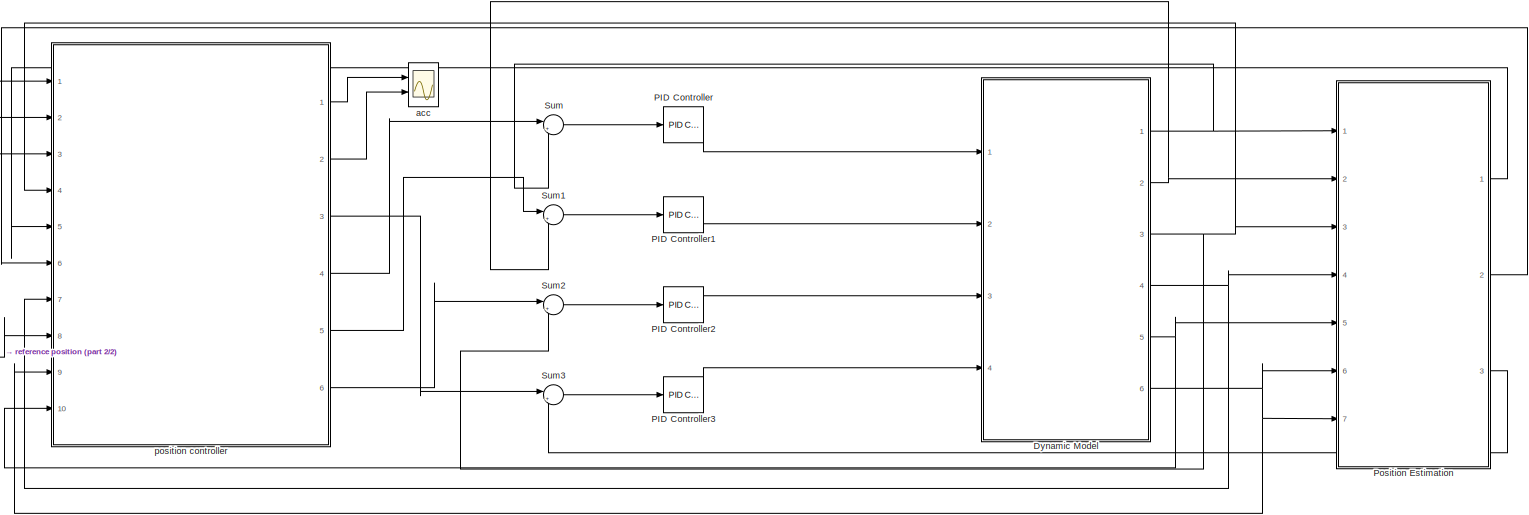
[diagram: root canvas - part 1/2, most of the canvas]
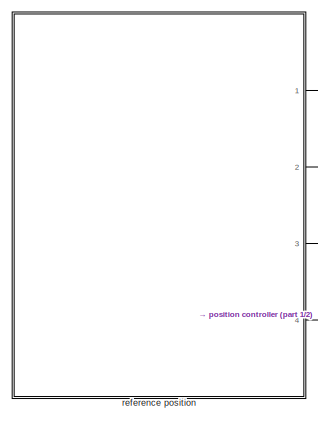
[diagram: root canvas - part 2/2, left side, full height]
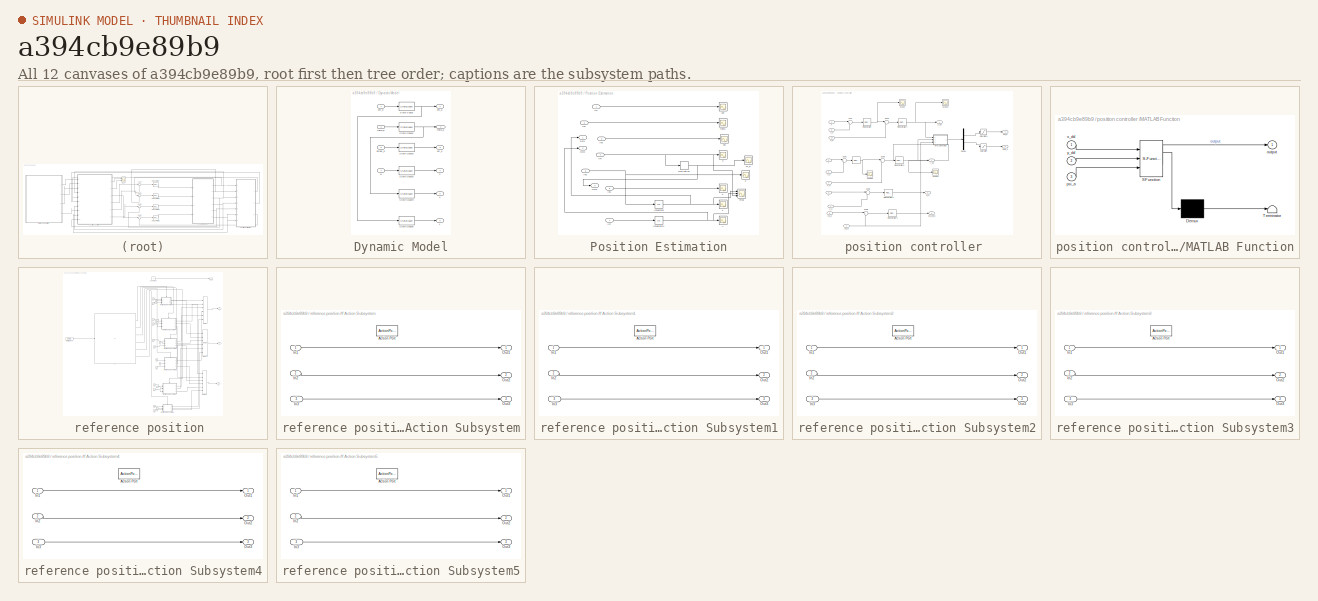
[diagram: thumbnail index - all 12 canvases of the model, root first then tree order]
MODEL slx_a394cb9e89b9
KIND model
CONFIG AbsTol = auto
CONFIG EnableMultiTasking = off
CONFIG FixedStep = auto
CONFIG MaxStep = auto
CONFIG MinStep = auto
CONFIG RelTol = 1e-3
CONFIG SampleTimeConstraint = Unconstrained
CONFIG SolverName = VariableStepAuto
CONFIG StartTime = 0.0
CONFIG StopTime = 1500
BLOCK [SubSystem] Dynamic Model
  Ports = [4, 6]
  RequestExecContextInheritance = off
BLOCK [StateSpace] Dynamic Model/State-Space
  A = A_roll
  B = B_roll
  C = C_roll
  D = D_roll
  InitialCondition = 0
  Ports = [1, 1]
BLOCK [StateSpace] Dynamic Model/State-Space1
  A = A_pitch
  B = B_pitch
  C = C_pitch
  D = D_pitch
  InitialCondition = 0
  Ports = [1, 1]
BLOCK [StateSpace] Dynamic Model/State-Space2
  A = A_yaw
  B = B_yaw
  C = C_yaw
  D = D_yaw
  InitialCondition = 0
  Ports = [1, 1]
BLOCK [StateSpace] Dynamic Model/State-Space3
  A = A_h
  B = B_h
  C = C_h
  D = D_h
  InitialCondition = 0
  Ports = [1, 1]
BLOCK [StateSpace] Dynamic Model/State-Space4
  A = A_p2u
  B = B_p2u
  C = C_p2u
  D = D_p2u
  InitialCondition = 0
  Ports = [1, 1]
BLOCK [StateSpace] Dynamic Model/State-Space5
  A = A_r2v
  B = B_r2v
  C = C_r2v
  D = D_r2v
  InitialCondition = 0
  Ports = [1, 1]
BLOCK [Outport] Dynamic Model/h
  Port = 4
  VectorParamsAs1DForOutWhenUnconnected = off
BLOCK [Outport] Dynamic Model/phi_a
  VectorParamsAs1DForOutWhenUnconnected = off
BLOCK [Inport] Dynamic Model/phi_d
BLOCK [Outport] Dynamic Model/psi_a
  Port = 3
  VectorParamsAs1DForOutWhenUnconnected = off
BLOCK [Inport] Dynamic Model/psidot_d
  Port = 3
BLOCK [Outport] Dynamic Model/theta_a
  Port = 2
  VectorParamsAs1DForOutWhenUnconnected = off
BLOCK [Inport] Dynamic Model/theta_d
  Port = 2
BLOCK [Outport] Dynamic Model/u
  Port = 5
  VectorParamsAs1DForOutWhenUnconnected = off
BLOCK [Outport] Dynamic Model/v
  Port = 6
  VectorParamsAs1DForOutWhenUnconnected = off
BLOCK [Inport] Dynamic Model/w
  Port = 4
BLOCK [Reference] PID Controller  REF=slpidlib/PID Controller
  Ports = [1, 1]
  SourceBlock = slpidlib/PID Controller
  SourceProductBaseCode = SL
  SourceType = PID 1dof
BLOCK [Reference] PID Controller1  REF=slpidlib/PID Controller
  Ports = [1, 1]
  SourceBlock = slpidlib/PID Controller
  SourceProductBaseCode = SL
  SourceType = PID 1dof
BLOCK [Reference] PID Controller2  REF=slpidlib/PID Controller
  Ports = [1, 1]
  SourceBlock = slpidlib/PID Controller
  SourceProductBaseCode = SL
  SourceType = PID 1dof
BLOCK [Reference] PID Controller3  REF=slpidlib/PID Controller
  Ports = [1, 1]
  SourceBlock = slpidlib/PID Controller
  SourceProductBaseCode = SL
  SourceType = PID 1dof
BLOCK [SubSystem] Position Estimation
  Ports = [7, 3]
  RequestExecContextInheritance = off
BLOCK [Derivative] Position Estimation/Derivative
BLOCK [Scope] Position Estimation/Final
  Floating = off
  NumInputPorts = 3
  Ports = [3]
  ScopeSpecificationString = Simulink.scopes.TimeScopeBlockCfg('CurrentConfiguration', extmgr.ConfigurationSet(extmgr.Configuration('Core','General UI',true),extmgr.Configuration('Core','Source UI',true),extmgr.Configuration('Sources','WiredSimulink',true,'DataLoggingVariableName','ScopeData1'),extmgr.Configuration('Visuals','Time Domain',true,'SerializedDisplays',{struct('MinYLimReal','-9.5016','MaxYLimReal','8.65762','YLabe...<+1572ch>
BLOCK [Inport] Position Estimation/In1
BLOCK [Inport] Position Estimation/In2
  Port = 2
BLOCK [Inport] Position Estimation/In3
  Port = 3
BLOCK [Inport] Position Estimation/In4
  Port = 4
BLOCK [Inport] Position Estimation/In5
  Port = 5
BLOCK [Inport] Position Estimation/In6
  Port = 6
BLOCK [Inport] Position Estimation/In7
  Port = 7
BLOCK [Integrator] Position Estimation/Integrator
  Ports = [1, 1]
BLOCK [Integrator] Position Estimation/Integrator1
  Ports = [1, 1]
BLOCK [Outport] Position Estimation/Out1
BLOCK [Outport] Position Estimation/Out2
  Port = 2
BLOCK [Outport] Position Estimation/Out3
  Port = 3
BLOCK [Scope] Position Estimation/h
  Floating = off
  NumInputPorts = 1
  Ports = [1]
  ScopeSpecificationString = Simulink.scopes.TimeScopeBlockCfg('CurrentConfiguration', extmgr.ConfigurationSet(extmgr.Configuration('Core','General UI',true),extmgr.Configuration('Core','Source UI',true),extmgr.Configuration('Sources','WiredSimulink',true,'DataLoggingVariableName','ScopeData3'),extmgr.Configuration('Visuals','Time Domain',true,'SerializedDisplays',{struct('MinYLimReal','-0.58809','MaxYLimReal','5.29281','YLab...<+1407ch>
BLOCK [Scope] Position Estimation/phi 
  Floating = off
  NumInputPorts = 1
  Ports = [1]
  ScopeSpecificationString = Simulink.scopes.TimeScopeBlockCfg('CurrentConfiguration', extmgr.ConfigurationSet(extmgr.Configuration('Core','General UI',true),extmgr.Configuration('Core','Source UI',true),extmgr.Configuration('Sources','WiredSimulink',true),extmgr.Configuration('Visuals','Time Domain',true,'SerializedDisplays',{struct('MinYLimReal','-0.0291','MaxYLimReal','0.24175','YLabelReal','','MinYLimMag','0.00000','MaxYL...<+1333ch>
BLOCK [Scope] Position Estimation/psi
  Floating = off
  NumInputPorts = 1
  Ports = [1]
  ScopeSpecificationString = Simulink.scopes.TimeScopeBlockCfg('CurrentConfiguration', extmgr.ConfigurationSet(extmgr.Configuration('Core','General UI',true),extmgr.Configuration('Core','Source UI',true),extmgr.Configuration('Sources','WiredSimulink',true,'DataLoggingVariableName','ScopeData2'),extmgr.Configuration('Visuals','Time Domain',true,'SerializedDisplays',{struct('MinYLimReal','-0.00134','MaxYLimReal','0.01209','YLab...<+1374ch>
BLOCK [Scope] Position Estimation/theta 
  Floating = off
  NumInputPorts = 1
  Ports = [1]
  ScopeSpecificationString = Simulink.scopes.TimeScopeBlockCfg('CurrentConfiguration', extmgr.ConfigurationSet(extmgr.Configuration('Core','General UI',true),extmgr.Configuration('Core','Source UI',true),extmgr.Configuration('Sources','WiredSimulink',true,'DataLoggingVariableName','ScopeData1'),extmgr.Configuration('Visuals','Time Domain',true,'SerializedDisplays',{struct('MinYLimReal','-0.05689','MaxYLimReal','0.00798','YLab...<+1374ch>
BLOCK [Scope] Position Estimation/u
  Floating = off
  NumInputPorts = 1
  Ports = [1]
  ScopeSpecificationString = Simulink.scopes.TimeScopeBlockCfg('CurrentConfiguration', extmgr.ConfigurationSet(extmgr.Configuration('Core','General UI',true),extmgr.Configuration('Core','Source UI',true),extmgr.Configuration('Sources','WiredSimulink',true,'DataLoggingVariableName','ScopeData4'),extmgr.Configuration('Visuals','Time Domain',true,'SerializedDisplays',{struct('MinYLimReal','-3.37325','MaxYLimReal','2.57675','YLab...<+1374ch>
BLOCK [Scope] Position Estimation/v
  Floating = off
  NumInputPorts = 1
  Ports = [1]
  ScopeSpecificationString = Simulink.scopes.TimeScopeBlockCfg('CurrentConfiguration', extmgr.ConfigurationSet(extmgr.Configuration('Core','General UI',true),extmgr.Configuration('Core','Source UI',true),extmgr.Configuration('Sources','WiredSimulink',true,'DataLoggingVariableName','ScopeData5'),extmgr.Configuration('Visuals','Time Domain',true,'SerializedDisplays',{struct('MinYLimReal','-0.13448','MaxYLimReal','1.00524','YLab...<+1374ch>
BLOCK [Scope] Position Estimation/w_a
  Floating = off
  NumInputPorts = 1
  Ports = [1]
  ScopeSpecificationString = Simulink.scopes.TimeScopeBlockCfg('CurrentConfiguration', extmgr.ConfigurationSet(extmgr.Configuration('Core','General UI',true),extmgr.Configuration('Core','Source UI',true),extmgr.Configuration('Sources','WiredSimulink',true,'DataLoggingVariableName','ScopeData7'),extmgr.Configuration('Visuals','Time Domain',true,'SerializedDisplays',{struct('MinYLimReal','-11791388447155532255272346727205037353...<+2826ch>
BLOCK [Scope] Position Estimation/x
  Floating = off
  NumInputPorts = 1
  Ports = [1]
  ScopeSpecificationString = Simulink.scopes.TimeScopeBlockCfg('CurrentConfiguration', extmgr.ConfigurationSet(extmgr.Configuration('Core','General UI',true),extmgr.Configuration('Core','Source UI',true),extmgr.Configuration('Sources','WiredSimulink',true,'DataLoggingVariableName','ScopeData6'),extmgr.Configuration('Visuals','Time Domain',true,'SerializedDisplays',{struct('MinYLimReal','-1.00000','MaxYLimReal','1.00000','YLab...<+1369ch>
BLOCK [Scope] Position Estimation/y
  Floating = off
  NumInputPorts = 1
  Ports = [1]
  ScopeSpecificationString = Simulink.scopes.TimeScopeBlockCfg('CurrentConfiguration', extmgr.ConfigurationSet(extmgr.Configuration('Core','General UI',true),extmgr.Configuration('Core','Source UI',true),extmgr.Configuration('Sources','WiredSimulink',true,'DataLoggingVariableName','ScopeData7'),extmgr.Configuration('Visuals','Time Domain',true,'SerializedDisplays',{struct('MinYLimReal','-1.00000','MaxYLimReal','1.00000','YLab...<+1370ch>
BLOCK [Sum] Sum
  Inputs = |+-
  Ports = [2, 1]
BLOCK [Sum] Sum1
  Inputs = |+-
  Ports = [2, 1]
BLOCK [Sum] Sum2
  Inputs = |+-
  Ports = [2, 1]
BLOCK [Sum] Sum3
  Inputs = |+-
  Ports = [2, 1]
BLOCK [Scope] acc
  Floating = off
  NumInputPorts = 2
  Ports = [2]
  ScopeSpecificationString = Simulink.scopes.TimeScopeBlockCfg('CurrentConfiguration', extmgr.ConfigurationSet(extmgr.Configuration('Core','General UI',true),extmgr.Configuration('Core','Source UI',true),extmgr.Configuration('Sources','WiredSimulink',true,'DataLoggingVariableName','ScopeData1'),extmgr.Configuration('Visuals','Time Domain',true,'SerializedDisplays',{struct('MinYLimReal','-47181060584891644318221313601471027281...<+2850ch>
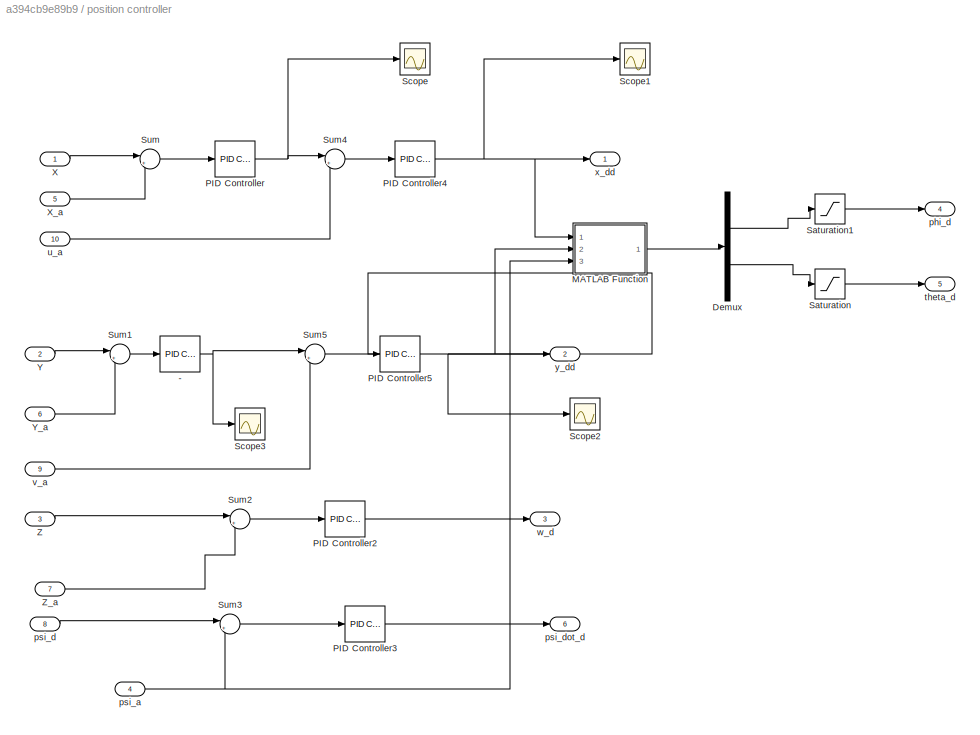
BLOCK [SubSystem] position controller 
  Ports = [10, 6]
  RequestExecContextInheritance = off
BLOCK [Reference] position controller /-  REF=slpidlib/PID Controller
  Ports = [1, 1]
  SourceBlock = slpidlib/PID Controller
  SourceProductBaseCode = SL
  SourceType = PID 1dof
BLOCK [Demux] position controller /Demux
  Outputs = 2
  Ports = [1, 2]
BLOCK [SubSystem] position controller /MATLAB Function
  ErrorFcn = Stateflow.Translate.translate
  PermitHierarchicalResolution = ExplicitOnly
  Ports = [3, 1]
  RequestExecContextInheritance = off
  SFBlockType = MATLAB Function
  TreatAsAtomicUnit = on
BLOCK [Demux] position controller /MATLAB Function/ Demux 
  Outputs = 1
  Ports = [1, 1]
BLOCK [S-Function] position controller /MATLAB Function/ SFunction 
  EnableBusSupport = on
  FunctionName = sf_sfun
  PortCounts = [3 2]
  Ports = [3, 2]
  SFcnIsStateOwnerBlock = off
  SFunctionDeploymentMode = off
  Tag = Stateflow S-Function 2
BLOCK [Terminator] position controller /MATLAB Function/ Terminator 
BLOCK [Outport] position controller /MATLAB Function/output
  VectorParamsAs1DForOutWhenUnconnected = off
BLOCK [Inport] position controller /MATLAB Function/psi_a
  Port = 3
BLOCK [Inport] position controller /MATLAB Function/x_dd
BLOCK [Inport] position controller /MATLAB Function/y_dd
  Port = 2
BLOCK [Reference] position controller /PID Controller  REF=slpidlib/PID Controller
  Ports = [1, 1]
  SourceBlock = slpidlib/PID Controller
  SourceProductBaseCode = SL
  SourceType = PID 1dof
BLOCK [Reference] position controller /PID Controller2  REF=slpidlib/PID Controller
  Ports = [1, 1]
  SourceBlock = slpidlib/PID Controller
  SourceProductBaseCode = SL
  SourceType = PID 1dof
BLOCK [Reference] position controller /PID Controller3  REF=slpidlib/PID Controller
  Ports = [1, 1]
  SourceBlock = slpidlib/PID Controller
  SourceProductBaseCode = SL
  SourceType = PID 1dof
BLOCK [Reference] position controller /PID Controller4  REF=slpidlib/PID Controller
  Ports = [1, 1]
  SourceBlock = slpidlib/PID Controller
  SourceProductBaseCode = SL
  SourceType = PID 1dof
BLOCK [Reference] position controller /PID Controller5  REF=slpidlib/PID Controller
  Ports = [1, 1]
  SourceBlock = slpidlib/PID Controller
  SourceProductBaseCode = SL
  SourceType = PID 1dof
BLOCK [Saturate] position controller /Saturation
  LowerLimit = -20
  UpperLimit = 20
BLOCK [Saturate] position controller /Saturation1
  LowerLimit = -20
  UpperLimit = 20
BLOCK [Scope] position controller /Scope
  Floating = off
  NumInputPorts = 1
  Ports = [1]
  ScopeSpecificationString = Simulink.scopes.TimeScopeBlockCfg('CurrentConfiguration', extmgr.ConfigurationSet(extmgr.Configuration('Core','General UI',true),extmgr.Configuration('Core','Source UI',true),extmgr.Configuration('Sources','WiredSimulink',true,'DataLoggingVariableName','ScopeData3'),extmgr.Configuration('Visuals','Time Domain',true,'SerializedDisplays',{struct('MinYLimReal','-13748608.83269','MaxYLimReal','1192994...<+1431ch>
BLOCK [Scope] position controller /Scope1
  Floating = off
  NumInputPorts = 1
  Ports = [1]
  ScopeSpecificationString = Simulink.scopes.TimeScopeBlockCfg('CurrentConfiguration', extmgr.ConfigurationSet(extmgr.Configuration('Core','General UI',true),extmgr.Configuration('Core','Source UI',true),extmgr.Configuration('Sources','WiredSimulink',true,'DataLoggingVariableName','ScopeData4'),extmgr.Configuration('Visuals','Time Domain',true,'SerializedDisplays',{struct('MinYLimReal','-63.04558','MaxYLimReal','271.73894','Y...<+1384ch>
BLOCK [Scope] position controller /Scope2
  Floating = off
  NumInputPorts = 1
  Ports = [1]
  ScopeSpecificationString = Simulink.scopes.TimeScopeBlockCfg('CurrentConfiguration', extmgr.ConfigurationSet(extmgr.Configuration('Core','General UI',true),extmgr.Configuration('Core','Source UI',true),extmgr.Configuration('Sources','WiredSimulink',true,'DataLoggingVariableName','ScopeData5'),extmgr.Configuration('Visuals','Time Domain',true,'SerializedDisplays',{struct('MinYLimReal','-47181060584891644318221313601471027281...<+2818ch>
BLOCK [Scope] position controller /Scope3
  Floating = off
  NumInputPorts = 1
  Ports = [1]
  ScopeSpecificationString = Simulink.scopes.TimeScopeBlockCfg('CurrentConfiguration', extmgr.ConfigurationSet(extmgr.Configuration('Core','General UI',true),extmgr.Configuration('Core','Source UI',true),extmgr.Configuration('Sources','WiredSimulink',true,'DataLoggingVariableName','ScopeData6'),extmgr.Configuration('Visuals','Time Domain',true,'SerializedDisplays',{struct('MinYLimReal','-31386306109580724507697589105913453621...<+2860ch>
BLOCK [Sum] position controller /Sum
  Inputs = |+-
  Ports = [2, 1]
BLOCK [Sum] position controller /Sum1
  Inputs = |+-
  Ports = [2, 1]
BLOCK [Sum] position controller /Sum2
  Inputs = |+-
  Ports = [2, 1]
BLOCK [Sum] position controller /Sum3
  Inputs = |+-
  Ports = [2, 1]
BLOCK [Sum] position controller /Sum4
  Inputs = |+-
  Ports = [2, 1]
BLOCK [Sum] position controller /Sum5
  Inputs = |+-
  Ports = [2, 1]
BLOCK [Inport] position controller /X
BLOCK [Inport] position controller /X_a
  Port = 5
BLOCK [Inport] position controller /Y
  Port = 2
BLOCK [Inport] position controller /Y_a
  Port = 6
BLOCK [Inport] position controller /Z
  Port = 3
BLOCK [Inport] position controller /Z_a
  Port = 7
BLOCK [Outport] position controller /phi_d
  Port = 4
  VectorParamsAs1DForOutWhenUnconnected = off
BLOCK [Inport] position controller /psi_a
  Port = 4
BLOCK [Inport] position controller /psi_d
  Port = 8
BLOCK [Outport] position controller /psi_dot_d
  Port = 6
  VectorParamsAs1DForOutWhenUnconnected = off
BLOCK [Outport] position controller /theta_d
  Port = 5
  VectorParamsAs1DForOutWhenUnconnected = off
BLOCK [Inport] position controller /u_a
  Port = 10
BLOCK [Inport] position controller /v_a
  Port = 9
BLOCK [Outport] position controller /w_d
  Port = 3
  VectorParamsAs1DForOutWhenUnconnected = off
BLOCK [Outport] position controller /x_dd
  VectorParamsAs1DForOutWhenUnconnected = off
BLOCK [Outport] position controller /y_dd
  Port = 2
  VectorParamsAs1DForOutWhenUnconnected = off
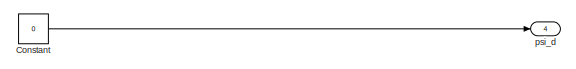
[diagram: reference position  - part 1/4, top right region]
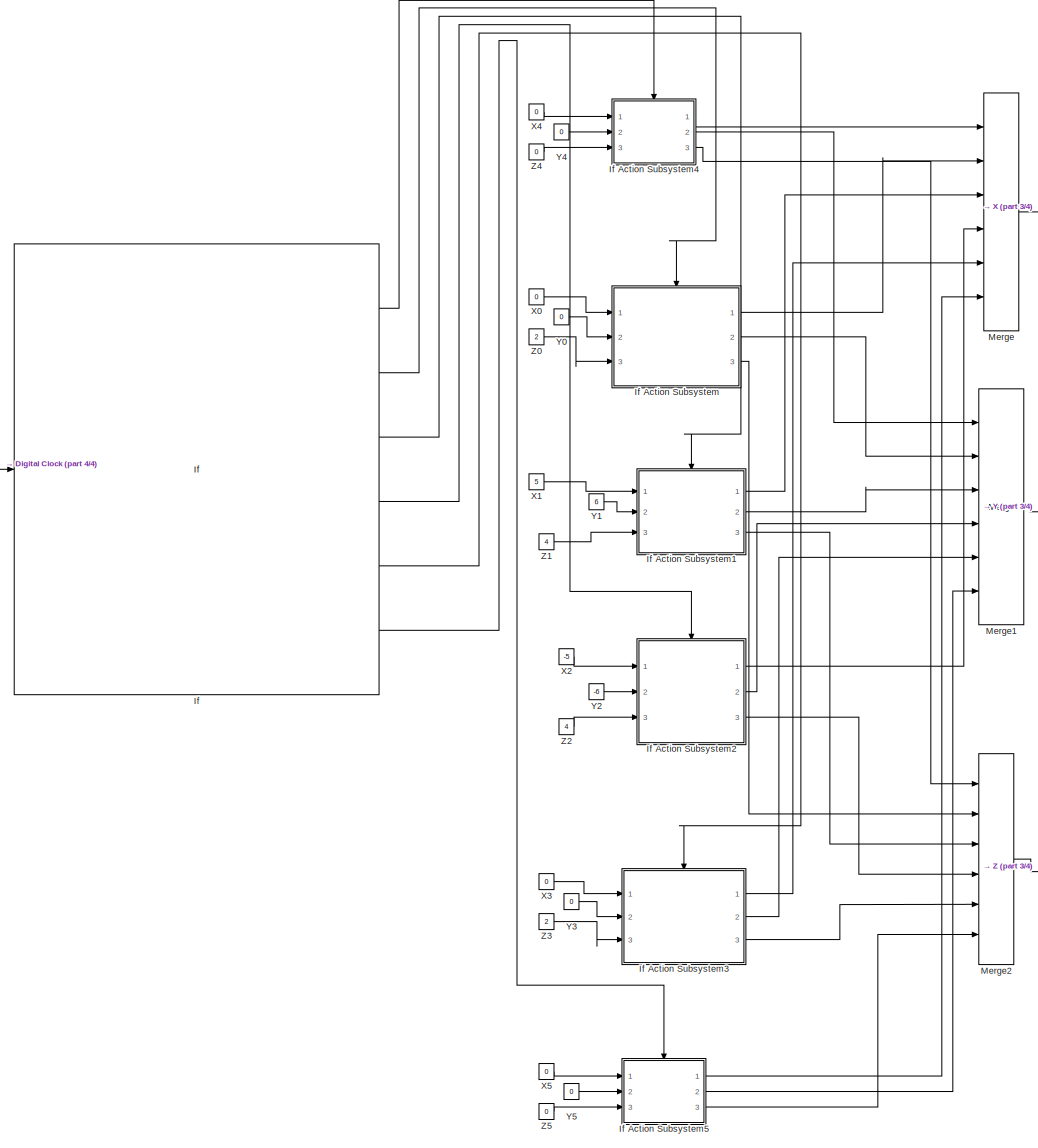
[diagram: reference position  - part 2/4, most of the canvas]
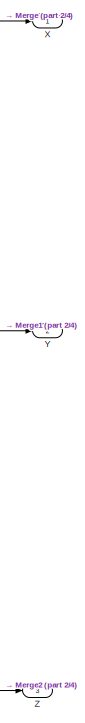
[diagram: reference position  - part 3/4, middle right region]
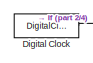
[diagram: reference position  - part 4/4, middle left region]
BLOCK [SubSystem] reference position 
  Ports = [0, 4]
  RequestExecContextInheritance = off
BLOCK [Constant] reference position /Constant
  Value = 0
BLOCK [DigitalClock] reference position /Digital Clock
BLOCK [If] reference position /If
  ElseIfExpressions = u1>0&u1<=300,u1>300&u1<=600,u1>600&u1<=900,u1>900&u1<=1200
  IfExpression = u1==0
  Ports = [1, 6]
BLOCK [SubSystem] reference position /If Action Subsystem
  Ports = [3, 3, 0, 0, 0, 0, 0, 1]
  RequestExecContextInheritance = off
  TreatAsAtomicUnit = on
BLOCK [ActionPort] reference position /If Action Subsystem/Action Port
  ActionPortLabel = elseif(u1>0&u1<=300)
BLOCK [Inport] reference position /If Action Subsystem/In1
BLOCK [Inport] reference position /If Action Subsystem/In2
  Port = 2
BLOCK [Inport] reference position /If Action Subsystem/In3
  Port = 3
BLOCK [Outport] reference position /If Action Subsystem/Out1
  VectorParamsAs1DForOutWhenUnconnected = off
BLOCK [Outport] reference position /If Action Subsystem/Out2
  Port = 2
  VectorParamsAs1DForOutWhenUnconnected = off
BLOCK [Outport] reference position /If Action Subsystem/Out3
  Port = 3
  VectorParamsAs1DForOutWhenUnconnected = off
BLOCK [SubSystem] reference position /If Action Subsystem1
  Ports = [3, 3, 0, 0, 0, 0, 0, 1]
  RequestExecContextInheritance = off
  TreatAsAtomicUnit = on
BLOCK [ActionPort] reference position /If Action Subsystem1/Action Port
  ActionPortLabel = elseif(u1>300&u1<=600)
BLOCK [Inport] reference position /If Action Subsystem1/In1
BLOCK [Inport] reference position /If Action Subsystem1/In2
  Port = 2
BLOCK [Inport] reference position /If Action Subsystem1/In3
  Port = 3
BLOCK [Outport] reference position /If Action Subsystem1/Out1
  VectorParamsAs1DForOutWhenUnconnected = off
BLOCK [Outport] reference position /If Action Subsystem1/Out2
  Port = 2
  VectorParamsAs1DForOutWhenUnconnected = off
BLOCK [Outport] reference position /If Action Subsystem1/Out3
  Port = 3
  VectorParamsAs1DForOutWhenUnconnected = off
BLOCK [SubSystem] reference position /If Action Subsystem2
  Ports = [3, 3, 0, 0, 0, 0, 0, 1]
  RequestExecContextInheritance = off
  TreatAsAtomicUnit = on
BLOCK [ActionPort] reference position /If Action Subsystem2/Action Port
  ActionPortLabel = elseif(u1>600&u1<=900)
BLOCK [Inport] reference position /If Action Subsystem2/In1
BLOCK [Inport] reference position /If Action Subsystem2/In2
  Port = 2
BLOCK [Inport] reference position /If Action Subsystem2/In3
  Port = 3
BLOCK [Outport] reference position /If Action Subsystem2/Out1
  VectorParamsAs1DForOutWhenUnconnected = off
BLOCK [Outport] reference position /If Action Subsystem2/Out2
  Port = 2
  VectorParamsAs1DForOutWhenUnconnected = off
BLOCK [Outport] reference position /If Action Subsystem2/Out3
  Port = 3
  VectorParamsAs1DForOutWhenUnconnected = off
BLOCK [SubSystem] reference position /If Action Subsystem3
  Ports = [3, 3, 0, 0, 0, 0, 0, 1]
  RequestExecContextInheritance = off
  TreatAsAtomicUnit = on
BLOCK [ActionPort] reference position /If Action Subsystem3/Action Port
  ActionPortLabel = elseif(u1>900&u1<=1200)
BLOCK [Inport] reference position /If Action Subsystem3/In1
BLOCK [Inport] reference position /If Action Subsystem3/In2
  Port = 2
BLOCK [Inport] reference position /If Action Subsystem3/In3
  Port = 3
BLOCK [Outport] reference position /If Action Subsystem3/Out1
  VectorParamsAs1DForOutWhenUnconnected = off
BLOCK [Outport] reference position /If Action Subsystem3/Out2
  Port = 2
  VectorParamsAs1DForOutWhenUnconnected = off
BLOCK [Outport] reference position /If Action Subsystem3/Out3
  Port = 3
  VectorParamsAs1DForOutWhenUnconnected = off
BLOCK [SubSystem] reference position /If Action Subsystem4
  Ports = [3, 3, 0, 0, 0, 0, 0, 1]
  RequestExecContextInheritance = off
  TreatAsAtomicUnit = on
BLOCK [ActionPort] reference position /If Action Subsystem4/Action Port
  ActionPortLabel = if(u1==0)
BLOCK [Inport] reference position /If Action Subsystem4/In1
BLOCK [Inport] reference position /If Action Subsystem4/In2
  Port = 2
BLOCK [Inport] reference position /If Action Subsystem4/In3
  Port = 3
BLOCK [Outport] reference position /If Action Subsystem4/Out1
  VectorParamsAs1DForOutWhenUnconnected = off
BLOCK [Outport] reference position /If Action Subsystem4/Out2
  Port = 2
  VectorParamsAs1DForOutWhenUnconnected = off
BLOCK [Outport] reference position /If Action Subsystem4/Out3
  Port = 3
  VectorParamsAs1DForOutWhenUnconnected = off
BLOCK [SubSystem] reference position /If Action Subsystem5
  Ports = [3, 3, 0, 0, 0, 0, 0, 1]
  RequestExecContextInheritance = off
  TreatAsAtomicUnit = on
BLOCK [ActionPort] reference position /If Action Subsystem5/Action Port
  ActionPortLabel = else
BLOCK [Inport] reference position /If Action Subsystem5/In1
BLOCK [Inport] reference position /If Action Subsystem5/In2
  Port = 2
BLOCK [Inport] reference position /If Action Subsystem5/In3
  Port = 3
BLOCK [Outport] reference position /If Action Subsystem5/Out1
  VectorParamsAs1DForOutWhenUnconnected = off
BLOCK [Outport] reference position /If Action Subsystem5/Out2
  Port = 2
  VectorParamsAs1DForOutWhenUnconnected = off
BLOCK [Outport] reference position /If Action Subsystem5/Out3
  Port = 3
  VectorParamsAs1DForOutWhenUnconnected = off
BLOCK [Merge] reference position /Merge
  Inputs = 6
  Ports = [6, 1]
BLOCK [Merge] reference position /Merge1
  Inputs = 6
  Ports = [6, 1]
BLOCK [Merge] reference position /Merge2
  Inputs = 6
  Ports = [6, 1]
BLOCK [Outport] reference position /X
  VectorParamsAs1DForOutWhenUnconnected = off
BLOCK [Constant] reference position /X0
  Value = 0
BLOCK [Constant] reference position /X1
  Value = 5
BLOCK [Constant] reference position /X2
  Value = -5
BLOCK [Constant] reference position /X3
  Value = 0
BLOCK [Constant] reference position /X4
  Value = 0
BLOCK [Constant] reference position /X5
  Value = 0
BLOCK [Outport] reference position /Y
  Port = 2
  VectorParamsAs1DForOutWhenUnconnected = off
BLOCK [Constant] reference position /Y0
  Value = 0
BLOCK [Constant] reference position /Y1
  Value = 6
BLOCK [Constant] reference position /Y2
  Value = -6
BLOCK [Constant] reference position /Y3
  Value = 0
BLOCK [Constant] reference position /Y4
  Value = 0
BLOCK [Constant] reference position /Y5
  Value = 0
BLOCK [Outport] reference position /Z
  Port = 3
  VectorParamsAs1DForOutWhenUnconnected = off
BLOCK [Constant] reference position /Z0
  Value = 2
BLOCK [Constant] reference position /Z1
  Value = 4
BLOCK [Constant] reference position /Z2
  Value = 4
BLOCK [Constant] reference position /Z3
  Value = 2
BLOCK [Constant] reference position /Z4
  Value = 0
BLOCK [Constant] reference position /Z5
  Value = 0
BLOCK [Outport] reference position /psi_d
  Port = 4
  VectorParamsAs1DForOutWhenUnconnected = off
NET Dynamic Model/State-Space1:1 -> Dynamic Model/State-Space4:1, Dynamic Model/theta_a:1
LINE Dynamic Model/State-Space2:1 -> Dynamic Model/psi_a:1
LINE Dynamic Model/State-Space3:1 -> Dynamic Model/h:1
LINE Dynamic Model/State-Space4:1 -> Dynamic Model/u:1
LINE Dynamic Model/State-Space5:1 -> Dynamic Model/v:1
NET Dynamic Model/State-Space:1 -> Dynamic Model/State-Space5:1, Dynamic Model/phi_a:1
LINE Dynamic Model/phi_d:1 -> Dynamic Model/State-Space:1
LINE Dynamic Model/psidot_d:1 -> Dynamic Model/State-Space2:1
LINE Dynamic Model/theta_d:1 -> Dynamic Model/State-Space1:1
LINE Dynamic Model/w:1 -> Dynamic Model/State-Space3:1
NET Dynamic Model:1 -> Position Estimation:1, Sum:2
NET Dynamic Model:2 -> Position Estimation:2, Sum1:2
NET Dynamic Model:3 -> Position Estimation:3, Sum2:2, position controller :4
NET Dynamic Model:4 -> Position Estimation:4, position controller :7
NET Dynamic Model:5 -> Position Estimation:5, position controller :10
NET Dynamic Model:6 -> Position Estimation:6, Position Estimation:7, position controller :9
LINE PID Controller1:1 -> Dynamic Model:2
LINE PID Controller2:1 -> Dynamic Model:3
LINE PID Controller3:1 -> Dynamic Model:4
LINE PID Controller:1 -> Dynamic Model:1
NET Position Estimation/Derivative:1 -> Position Estimation/Out3:1, Position Estimation/w_a:1
LINE Position Estimation/In1:1 -> Position Estimation/phi :1
LINE Position Estimation/In2:1 -> Position Estimation/theta :1
LINE Position Estimation/In3:1 -> Position Estimation/psi:1
NET Position Estimation/In4:1 -> Position Estimation/Derivative:1, Position Estimation/Final:3, Position Estimation/h:1
NET Position Estimation/In5:1 -> Position Estimation/Integrator:1, Position Estimation/u:1
LINE Position Estimation/In6:1 -> Position Estimation/v:1
LINE Position Estimation/In7:1 -> Position Estimation/Integrator1:1
NET Position Estimation/Integrator1:1 -> Position Estimation/Final:2, Position Estimation/Out2:1, Position Estimation/y:1
NET Position Estimation/Integrator:1 -> Position Estimation/Final:1, Position Estimation/Out1:1, Position Estimation/x:1
LINE Position Estimation:1 -> position controller :5
LINE Position Estimation:2 -> position controller :6
LINE Position Estimation:3 -> Sum3:2
LINE Sum1:1 -> PID Controller1:1
LINE Sum2:1 -> PID Controller2:1
LINE Sum3:1 -> PID Controller3:1
LINE Sum:1 -> PID Controller:1
NET position controller /-:1 -> position controller /Scope3:1, position controller /Sum5:1
LINE position controller /Demux:1 -> position controller /Saturation1:1
LINE position controller /Demux:2 -> position controller /Saturation:1
LINE position controller /MATLAB Function:1 -> position controller /Demux:1
LINE position controller /PID Controller2:1 -> position controller /w_d:1
LINE position controller /PID Controller3:1 -> position controller /psi_dot_d:1
NET position controller /PID Controller4:1 -> position controller /MATLAB Function:1, position controller /Scope1:1, position controller /x_dd:1
NET position controller /PID Controller5:1 -> position controller /MATLAB Function:2, position controller /Scope2:1, position controller /y_dd:1
NET position controller /PID Controller:1 -> position controller /Scope:1, position controller /Sum4:1
LINE position controller /Saturation1:1 -> position controller /phi_d:1
LINE position controller /Saturation:1 -> position controller /theta_d:1
LINE position controller /Sum1:1 -> position controller /-:1
LINE position controller /Sum2:1 -> position controller /PID Controller2:1
LINE position controller /Sum3:1 -> position controller /PID Controller3:1
LINE position controller /Sum4:1 -> position controller /PID Controller4:1
LINE position controller /Sum5:1 -> position controller /PID Controller5:1
LINE position controller /Sum:1 -> position controller /PID Controller:1
LINE position controller /X:1 -> position controller /Sum:1
LINE position controller /X_a:1 -> position controller /Sum:2
LINE position controller /Y:1 -> position controller /Sum1:1
LINE position controller /Y_a:1 -> position controller /Sum1:2
LINE position controller /Z:1 -> position controller /Sum2:1
LINE position controller /Z_a:1 -> position controller /Sum2:2
NET position controller /psi_a:1 -> position controller /MATLAB Function:3, position controller /Sum3:2
LINE position controller /psi_d:1 -> position controller /Sum3:1
LINE position controller /u_a:1 -> position controller /Sum4:2
LINE position controller /v_a:1 -> position controller /Sum5:2
LINE position controller :1 -> acc:1
LINE position controller :2 -> acc:2
LINE position controller :3 -> Sum3:1
LINE position controller :4 -> Sum:1
LINE position controller :5 -> Sum1:1
LINE position controller :6 -> Sum2:1
LINE reference position /Constant:1 -> reference position /psi_d:1
LINE reference position /Digital Clock:1 -> reference position /If:1
LINE reference position /If Action Subsystem/In1:1 -> reference position /If Action Subsystem/Out1:1
LINE reference position /If Action Subsystem/In2:1 -> reference position /If Action Subsystem/Out2:1
LINE reference position /If Action Subsystem/In3:1 -> reference position /If Action Subsystem/Out3:1
LINE reference position /If Action Subsystem1/In1:1 -> reference position /If Action Subsystem1/Out1:1
LINE reference position /If Action Subsystem1/In2:1 -> reference position /If Action Subsystem1/Out2:1
LINE reference position /If Action Subsystem1/In3:1 -> reference position /If Action Subsystem1/Out3:1
LINE reference position /If Action Subsystem1:1 -> reference position /Merge:3
LINE reference position /If Action Subsystem1:2 -> reference position /Merge1:3
LINE reference position /If Action Subsystem1:3 -> reference position /Merge2:3
LINE reference position /If Action Subsystem2/In1:1 -> reference position /If Action Subsystem2/Out1:1
LINE reference position /If Action Subsystem2/In2:1 -> reference position /If Action Subsystem2/Out2:1
LINE reference position /If Action Subsystem2/In3:1 -> reference position /If Action Subsystem2/Out3:1
LINE reference position /If Action Subsystem2:1 -> reference position /Merge:4
LINE reference position /If Action Subsystem2:2 -> reference position /Merge1:4
LINE reference position /If Action Subsystem2:3 -> reference position /Merge2:4
LINE reference position /If Action Subsystem3/In1:1 -> reference position /If Action Subsystem3/Out1:1
LINE reference position /If Action Subsystem3/In2:1 -> reference position /If Action Subsystem3/Out2:1
LINE reference position /If Action Subsystem3/In3:1 -> reference position /If Action Subsystem3/Out3:1
LINE reference position /If Action Subsystem3:1 -> reference position /Merge:5
LINE reference position /If Action Subsystem3:2 -> reference position /Merge1:5
LINE reference position /If Action Subsystem3:3 -> reference position /Merge2:5
LINE reference position /If Action Subsystem4/In1:1 -> reference position /If Action Subsystem4/Out1:1
LINE reference position /If Action Subsystem4/In2:1 -> reference position /If Action Subsystem4/Out2:1
LINE reference position /If Action Subsystem4/In3:1 -> reference position /If Action Subsystem4/Out3:1
LINE reference position /If Action Subsystem4:1 -> reference position /Merge:1
LINE reference position /If Action Subsystem4:2 -> reference position /Merge1:1
LINE reference position /If Action Subsystem4:3 -> reference position /Merge2:1
LINE reference position /If Action Subsystem5/In1:1 -> reference position /If Action Subsystem5/Out1:1
LINE reference position /If Action Subsystem5/In2:1 -> reference position /If Action Subsystem5/Out2:1
LINE reference position /If Action Subsystem5/In3:1 -> reference position /If Action Subsystem5/Out3:1
LINE reference position /If Action Subsystem5:1 -> reference position /Merge:6
LINE reference position /If Action Subsystem5:2 -> reference position /Merge1:6
LINE reference position /If Action Subsystem5:3 -> reference position /Merge2:6
LINE reference position /If Action Subsystem:1 -> reference position /Merge:2
LINE reference position /If Action Subsystem:2 -> reference position /Merge1:2
LINE reference position /If Action Subsystem:3 -> reference position /Merge2:2
LINE reference position /If:1 -> reference position /If Action Subsystem4:ifaction
LINE reference position /If:2 -> reference position /If Action Subsystem:ifaction
LINE reference position /If:3 -> reference position /If Action Subsystem1:ifaction
LINE reference position /If:4 -> reference position /If Action Subsystem2:ifaction
LINE reference position /If:5 -> reference position /If Action Subsystem3:ifaction
LINE reference position /If:6 -> reference position /If Action Subsystem5:ifaction
LINE reference position /Merge1:1 -> reference position /Y:1
LINE reference position /Merge2:1 -> reference position /Z:1
LINE reference position /Merge:1 -> reference position /X:1
LINE reference position /X0:1 -> reference position /If Action Subsystem:1
LINE reference position /X1:1 -> reference position /If Action Subsystem1:1
LINE reference position /X2:1 -> reference position /If Action Subsystem2:1
LINE reference position /X3:1 -> reference position /If Action Subsystem3:1
LINE reference position /X4:1 -> reference position /If Action Subsystem4:1
LINE reference position /X5:1 -> reference position /If Action Subsystem5:1
LINE reference position /Y0:1 -> reference position /If Action Subsystem:2
LINE reference position /Y1:1 -> reference position /If Action Subsystem1:2
LINE reference position /Y2:1 -> reference position /If Action Subsystem2:2
LINE reference position /Y3:1 -> reference position /If Action Subsystem3:2
LINE reference position /Y4:1 -> reference position /If Action Subsystem4:2
LINE reference position /Y5:1 -> reference position /If Action Subsystem5:2
LINE reference position /Z0:1 -> reference position /If Action Subsystem:3
LINE reference position /Z1:1 -> reference position /If Action Subsystem1:3
LINE reference position /Z2:1 -> reference position /If Action Subsystem2:3
LINE reference position /Z3:1 -> reference position /If Action Subsystem3:3
LINE reference position /Z4:1 -> reference position /If Action Subsystem4:3
LINE reference position /Z5:1 -> reference position /If Action Subsystem5:3
LINE reference position :1 -> position controller :1
LINE reference position :2 -> position controller :2
LINE reference position :3 -> position controller :3
LINE reference position :4 -> position controller :8
note: NET lines group one-source signal fan-out (src -> all destinations, sorted); 1:1 wires keep LINE
CHART position controller
/MATLAB Function states=1 transitions=1
  STATE_LABEL 'eML_blk_kernel()'
  STATE_LABEL 'SCRIPT:\nfunction output = fcn(x_dd,y_dd,psi_a)\nm=0.420;\ng=9.81;\nmg=m*g;\n%\nRR=[-sin(psi_a) -cos(psi_a);cos(psi_a) -sin(psi_a)];\ndes_angles= inv(RR)*[x_dd*mg;y_dd*mg];\nphi_d=des_angles(1);\ntheta_d=des_angles(2);\n\noutput = [phi_d;theta_d];\n'
CHART  states=0 transitions=0
